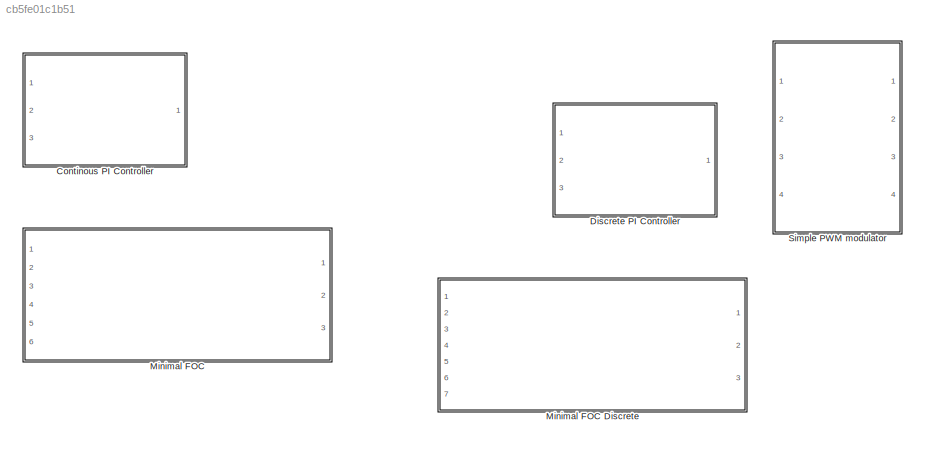
MODEL slx_cb5fe01c1b51
KIND library
CONFIG AbsTol = auto
CONFIG EnableMultiTasking = off
CONFIG FixedStep = auto
CONFIG MaxStep = auto
CONFIG MinStep = auto
CONFIG RelTol = 1e-3
CONFIG SampleTimeConstraint = Unconstrained
CONFIG Solver = VariableStepAuto
CONFIG SolverName = VariableStepAuto
CONFIG StartTime = 0.0
CONFIG StopTime = 10.0
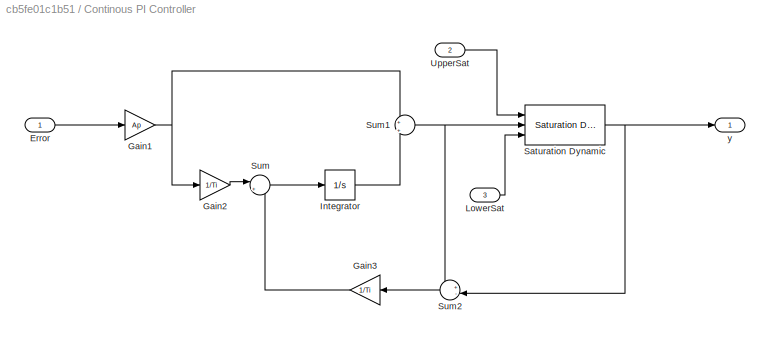
BLOCK [SubSystem] Continous PI Controller
  Ports = [3, 1]
  RequestExecContextInheritance = off
BLOCK [Inport] Continous PI Controller/Error
  IconDisplay = Port number
BLOCK [Gain] Continous PI Controller/Gain1
  Gain = Ap
  OutDataTypeStr = Inherit: Inherit via internal rule
  ParamDataTypeStr = Inherit: Inherit via internal rule
  SaturateOnIntegerOverflow = off
BLOCK [Gain] Continous PI Controller/Gain2
  Gain = 1/Ti
  OutDataTypeStr = Inherit: Inherit via internal rule
  ParamDataTypeStr = Inherit: Inherit via internal rule
  SaturateOnIntegerOverflow = off
BLOCK [Gain] Continous PI Controller/Gain3
  Gain = 1/Ti
  OutDataTypeStr = Inherit: Inherit via internal rule
  ParamDataTypeStr = Inherit: Inherit via internal rule
  SaturateOnIntegerOverflow = off
BLOCK [Integrator] Continous PI Controller/Integrator
  Ports = [1, 1]
BLOCK [Inport] Continous PI Controller/LowerSat
  IconDisplay = Port number
  Port = 3
BLOCK [Reference] Continous PI Controller/Saturation Dynamic  REF=simulink/Discontinuities/Saturation
Dynamic
  Ports = [3, 1]
  SourceBlock = simulink/Discontinuities/Saturation\nDynamic
  SourceProductBaseCode = SL
  SourceProductName = Simulink
  SourceType = Saturation Dynamic
BLOCK [Sum] Continous PI Controller/Sum
  IconShape = round
  InputSameDT = off
  Inputs = |+-
  OutDataTypeStr = Inherit: Inherit via internal rule
  Ports = [2, 1]
  SaturateOnIntegerOverflow = off
BLOCK [Sum] Continous PI Controller/Sum1
  IconShape = round
  InputSameDT = off
  Inputs = +|+
  OutDataTypeStr = Inherit: Inherit via internal rule
  Ports = [2, 1]
  SaturateOnIntegerOverflow = off
BLOCK [Sum] Continous PI Controller/Sum2
  IconShape = round
  InputSameDT = off
  Inputs = +-|
  OutDataTypeStr = Inherit: Inherit via internal rule
  Ports = [2, 1]
  SaturateOnIntegerOverflow = off
BLOCK [Inport] Continous PI Controller/UpperSat
  IconDisplay = Port number
  Port = 2
BLOCK [Outport] Continous PI Controller/y
  IconDisplay = Port number
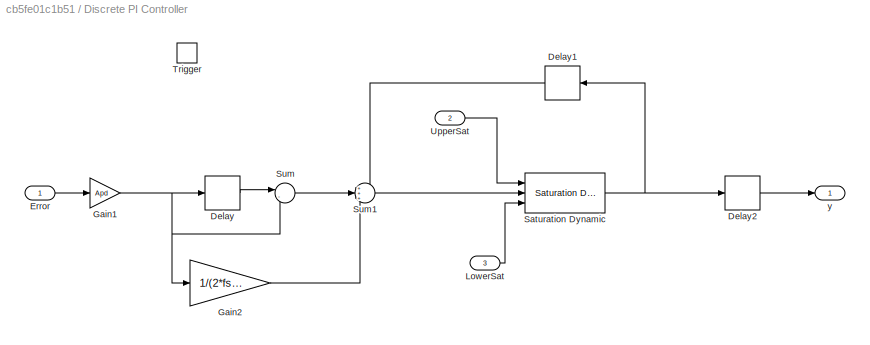
BLOCK [SubSystem] Discrete PI Controller
  AncestorBlock = controllers/Continous PI Controller
  Ports = [3, 1, 0, 1]
  RequestExecContextInheritance = off
BLOCK [Delay] Discrete PI Controller/Delay
  DelayLength = 1
  InputPortMap = u0
  Ports = [1, 1]
BLOCK [Delay] Discrete PI Controller/Delay1
  DelayLength = 1
  InputPortMap = u0
  Ports = [1, 1]
BLOCK [Delay] Discrete PI Controller/Delay2
  DelayLength = 1
  InputPortMap = u0
  Ports = [1, 1]
BLOCK [Inport] Discrete PI Controller/Error
  IconDisplay = Port number
BLOCK [Gain] Discrete PI Controller/Gain1
  Gain = Apd
  OutDataTypeStr = Inherit: Inherit via internal rule
  ParamDataTypeStr = Inherit: Inherit via internal rule
  SaturateOnIntegerOverflow = off
BLOCK [Gain] Discrete PI Controller/Gain2
  Gain = 1/(2*fs*Tid)
  OutDataTypeStr = Inherit: Inherit via internal rule
  ParamDataTypeStr = Inherit: Inherit via internal rule
  SaturateOnIntegerOverflow = off
BLOCK [Inport] Discrete PI Controller/LowerSat
  IconDisplay = Port number
  Port = 3
BLOCK [Reference] Discrete PI Controller/Saturation Dynamic  REF=simulink/Discontinuities/Saturation
Dynamic
  Ports = [3, 1]
  SourceBlock = simulink/Discontinuities/Saturation\nDynamic
  SourceProductBaseCode = SL
  SourceProductName = Simulink
  SourceType = Saturation Dynamic
BLOCK [Sum] Discrete PI Controller/Sum
  IconShape = round
  InputSameDT = off
  Inputs = |-+
  OutDataTypeStr = Inherit: Inherit via internal rule
  Ports = [2, 1]
  SaturateOnIntegerOverflow = off
BLOCK [Sum] Discrete PI Controller/Sum1
  IconShape = round
  InputSameDT = off
  Inputs = +++
  OutDataTypeStr = Inherit: Inherit via internal rule
  Ports = [3, 1]
  SaturateOnIntegerOverflow = off
BLOCK [TriggerPort] Discrete PI Controller/Trigger
  PortDimensions = 1
  Ports = []
  StatesWhenEnabling = held
  TriggerType = either
  VariantControl = Variant
BLOCK [Inport] Discrete PI Controller/UpperSat
  IconDisplay = Port number
  Port = 2
BLOCK [Outport] Discrete PI Controller/y
  IconDisplay = Port number
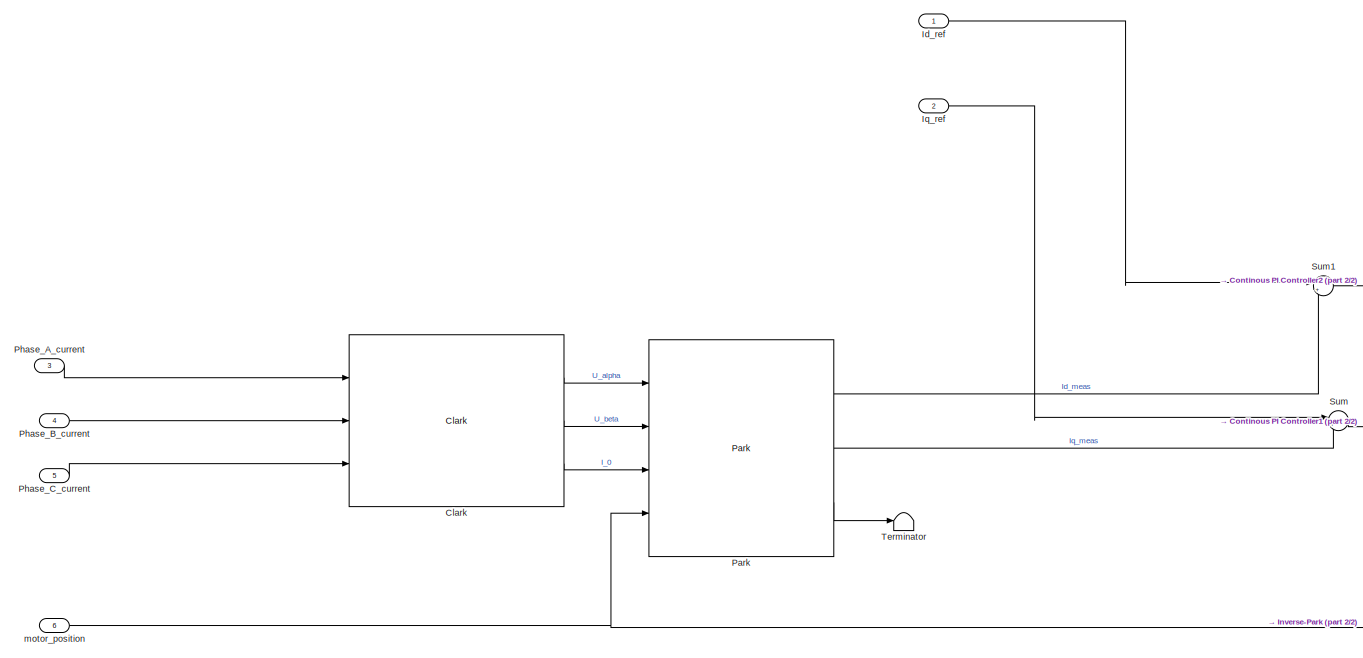
[diagram: Minimal FOC - part 1/2, left side, full height]
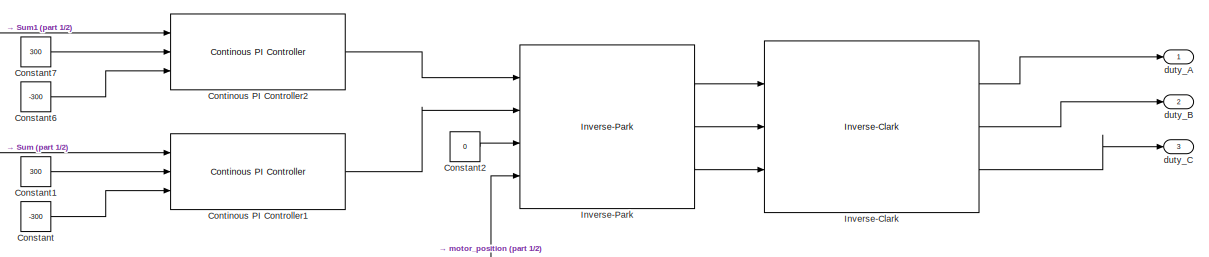
[diagram: Minimal FOC - part 2/2, middle right region]
BLOCK [SubSystem] Minimal FOC
  Ports = [6, 3]
  RequestExecContextInheritance = off
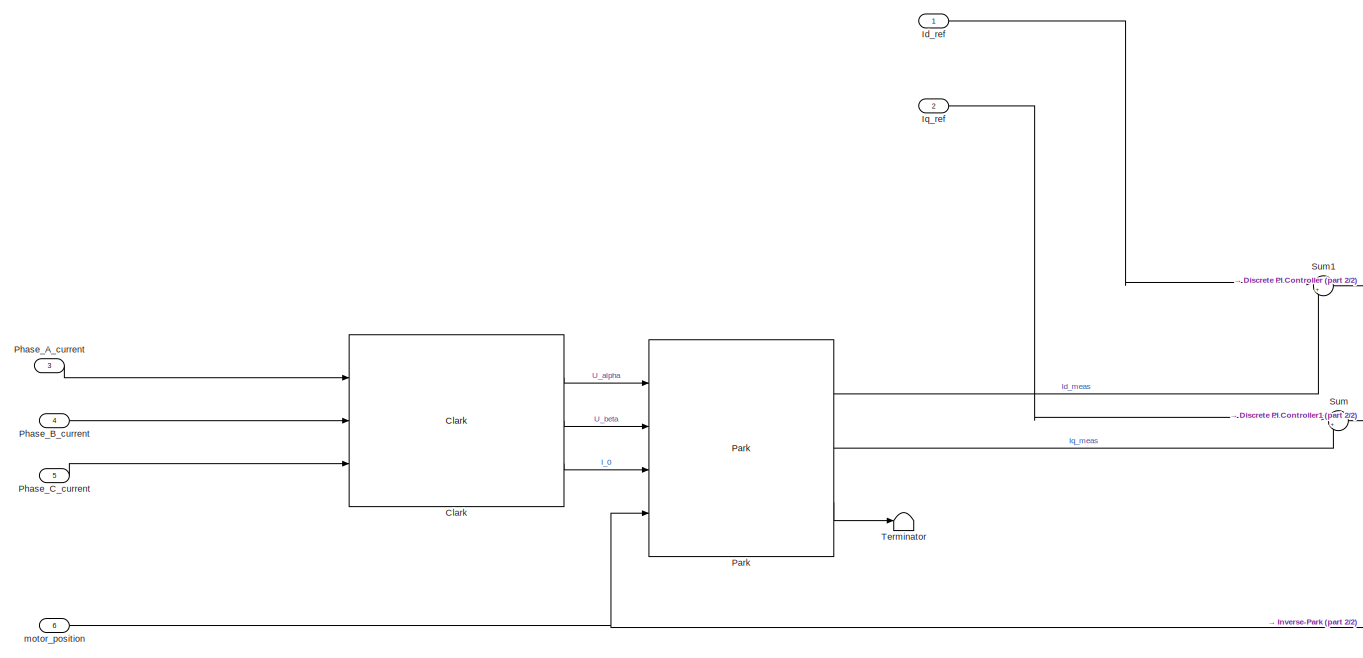
[diagram: Minimal FOC Discrete - part 1/2, left side, full height]
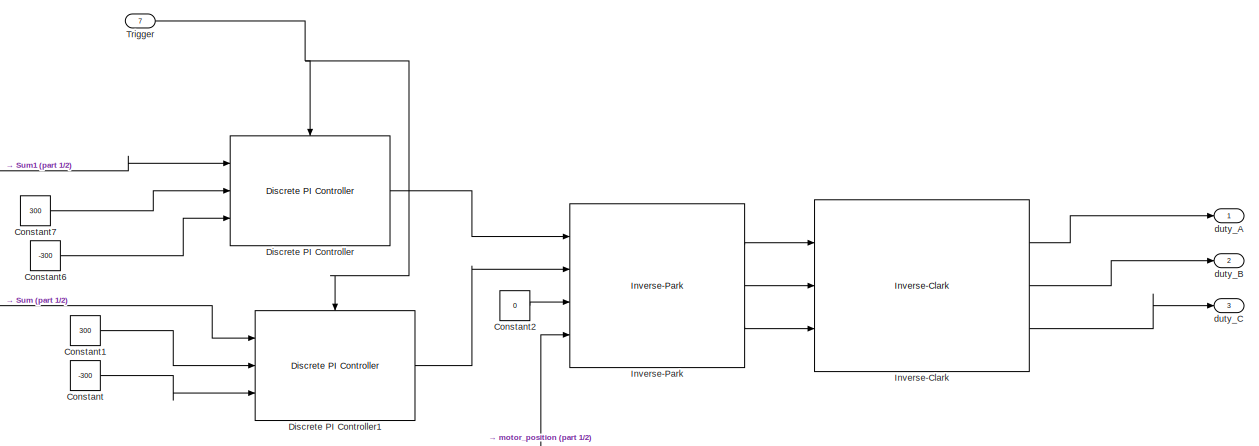
[diagram: Minimal FOC Discrete - part 2/2, middle right region]
BLOCK [SubSystem] Minimal FOC Discrete
  AncestorBlock = controllers/Minimal FOC
  Ports = [7, 3]
  RequestExecContextInheritance = off
BLOCK [Reference] Minimal FOC Discrete/Clark  REF=coordinate_transformations/Clark  (lib defined in slx_d357c885b4a9)
  Ports = [3, 3]
  SourceBlock = coordinate_transformations/Clark
  SourceType = SubSystem
BLOCK [Constant] Minimal FOC Discrete/Constant
  Value = -300
BLOCK [Constant] Minimal FOC Discrete/Constant1
  Value = 300
BLOCK [Constant] Minimal FOC Discrete/Constant2
  Value = 0
BLOCK [Constant] Minimal FOC Discrete/Constant6
  Value = -300
BLOCK [Constant] Minimal FOC Discrete/Constant7
  Value = 300
BLOCK [Reference] Minimal FOC Discrete/Discrete PI Controller  REF=$bdroot/Discrete PI Controller
  Ports = [3, 1, 0, 1]
  SourceBlock = $bdroot/Discrete PI Controller
  SourceType = Continous PI Controller
BLOCK [Reference] Minimal FOC Discrete/Discrete PI Controller1  REF=$bdroot/Discrete PI Controller
  Ports = [3, 1, 0, 1]
  SourceBlock = $bdroot/Discrete PI Controller
  SourceType = Continous PI Controller
BLOCK [Inport] Minimal FOC Discrete/Id_ref
  IconDisplay = Port number
BLOCK [Reference] Minimal FOC Discrete/Inverse-Clark  REF=coordinate_transformations/Inverse-Clark  (lib defined in slx_d357c885b4a9)
  Ports = [3, 3]
  SourceBlock = coordinate_transformations/Inverse-Clark
  SourceType = SubSystem
BLOCK [Reference] Minimal FOC Discrete/Inverse-Park  REF=coordinate_transformations/Inverse-Park  (lib defined in slx_d357c885b4a9)
  Ports = [4, 3]
  SourceBlock = coordinate_transformations/Inverse-Park
  SourceType = SubSystem
BLOCK [Inport] Minimal FOC Discrete/Iq_ref
  IconDisplay = Port number
  Port = 2
BLOCK [Reference] Minimal FOC Discrete/Park  REF=coordinate_transformations/Park  (lib defined in slx_d357c885b4a9)
  Ports = [4, 3]
  SourceBlock = coordinate_transformations/Park
  SourceType = SubSystem
BLOCK [Inport] Minimal FOC Discrete/Phase_A_current
  IconDisplay = Port number
  Port = 3
BLOCK [Inport] Minimal FOC Discrete/Phase_B_current
  IconDisplay = Port number
  Port = 4
BLOCK [Inport] Minimal FOC Discrete/Phase_C_current
  IconDisplay = Port number
  Port = 5
BLOCK [Sum] Minimal FOC Discrete/Sum
  IconShape = round
  InputSameDT = off
  Inputs = |+-
  OutDataTypeStr = Inherit: Inherit via internal rule
  Ports = [2, 1]
  SaturateOnIntegerOverflow = off
BLOCK [Sum] Minimal FOC Discrete/Sum1
  IconShape = round
  InputSameDT = off
  Inputs = |+-
  OutDataTypeStr = Inherit: Inherit via internal rule
  Ports = [2, 1]
  SaturateOnIntegerOverflow = off
BLOCK [Terminator] Minimal FOC Discrete/Terminator
BLOCK [Inport] Minimal FOC Discrete/Trigger
  IconDisplay = Port number
  Port = 7
BLOCK [Outport] Minimal FOC Discrete/duty_A
  IconDisplay = Port number
BLOCK [Outport] Minimal FOC Discrete/duty_B
  IconDisplay = Port number
  Port = 2
BLOCK [Outport] Minimal FOC Discrete/duty_C
  IconDisplay = Port number
  Port = 3
BLOCK [Inport] Minimal FOC Discrete/motor_position
  IconDisplay = Port number
  Port = 6
BLOCK [Reference] Minimal FOC/Clark  REF=coordinate_transformations/Clark  (lib defined in slx_d357c885b4a9)
  Ports = [3, 3]
  SourceBlock = coordinate_transformations/Clark
  SourceType = SubSystem
BLOCK [Constant] Minimal FOC/Constant
  Value = -300
BLOCK [Constant] Minimal FOC/Constant1
  Value = 300
BLOCK [Constant] Minimal FOC/Constant2
  Value = 0
BLOCK [Constant] Minimal FOC/Constant6
  Value = -300
BLOCK [Constant] Minimal FOC/Constant7
  Value = 300
BLOCK [Reference] Minimal FOC/Continous PI Controller1  REF=$bdroot/Continous PI Controller
  Ports = [3, 1]
  SourceBlock = $bdroot/Continous PI Controller
  SourceType = Continous PI Controller
BLOCK [Reference] Minimal FOC/Continous PI Controller2  REF=$bdroot/Continous PI Controller
  Ports = [3, 1]
  SourceBlock = $bdroot/Continous PI Controller
  SourceType = Continous PI Controller
BLOCK [Inport] Minimal FOC/Id_ref
  IconDisplay = Port number
BLOCK [Reference] Minimal FOC/Inverse-Clark  REF=coordinate_transformations/Inverse-Clark  (lib defined in slx_d357c885b4a9)
  Ports = [3, 3]
  SourceBlock = coordinate_transformations/Inverse-Clark
  SourceType = SubSystem
BLOCK [Reference] Minimal FOC/Inverse-Park  REF=coordinate_transformations/Inverse-Park  (lib defined in slx_d357c885b4a9)
  Ports = [4, 3]
  SourceBlock = coordinate_transformations/Inverse-Park
  SourceType = SubSystem
BLOCK [Inport] Minimal FOC/Iq_ref
  IconDisplay = Port number
  Port = 2
BLOCK [Reference] Minimal FOC/Park  REF=coordinate_transformations/Park  (lib defined in slx_d357c885b4a9)
  Ports = [4, 3]
  SourceBlock = coordinate_transformations/Park
  SourceType = SubSystem
BLOCK [Inport] Minimal FOC/Phase_A_current
  IconDisplay = Port number
  Port = 3
BLOCK [Inport] Minimal FOC/Phase_B_current
  IconDisplay = Port number
  Port = 4
BLOCK [Inport] Minimal FOC/Phase_C_current
  IconDisplay = Port number
  Port = 5
BLOCK [Sum] Minimal FOC/Sum
  IconShape = round
  InputSameDT = off
  Inputs = |+-
  OutDataTypeStr = Inherit: Inherit via internal rule
  Ports = [2, 1]
  SaturateOnIntegerOverflow = off
BLOCK [Sum] Minimal FOC/Sum1
  IconShape = round
  InputSameDT = off
  Inputs = |+-
  OutDataTypeStr = Inherit: Inherit via internal rule
  Ports = [2, 1]
  SaturateOnIntegerOverflow = off
BLOCK [Terminator] Minimal FOC/Terminator
BLOCK [Outport] Minimal FOC/duty_A
  IconDisplay = Port number
BLOCK [Outport] Minimal FOC/duty_B
  IconDisplay = Port number
  Port = 2
BLOCK [Outport] Minimal FOC/duty_C
  IconDisplay = Port number
  Port = 3
BLOCK [Inport] Minimal FOC/motor_position
  IconDisplay = Port number
  Port = 6
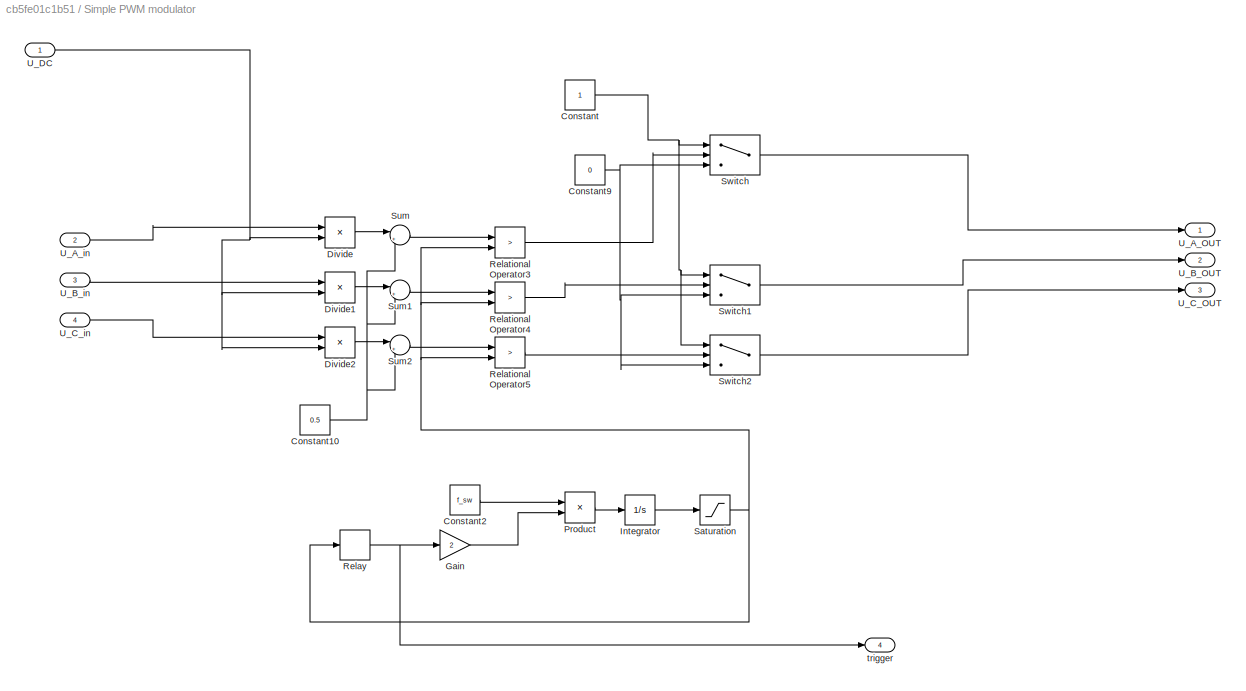
BLOCK [SubSystem] Simple PWM modulator
  Ports = [4, 4]
  RequestExecContextInheritance = off
BLOCK [Constant] Simple PWM modulator/Constant
BLOCK [Constant] Simple PWM modulator/Constant10
  Value = 0.5
BLOCK [Constant] Simple PWM modulator/Constant2
  Value = f_sw
BLOCK [Constant] Simple PWM modulator/Constant9
  Value = 0
BLOCK [Product] Simple PWM modulator/Divide
  InputSameDT = off
  Inputs = */
  OutDataTypeStr = Inherit: Inherit via internal rule
  Ports = [2, 1]
  RndMeth = Floor
  SaturateOnIntegerOverflow = off
BLOCK [Product] Simple PWM modulator/Divide1
  InputSameDT = off
  Inputs = */
  OutDataTypeStr = Inherit: Inherit via internal rule
  Ports = [2, 1]
  RndMeth = Floor
  SaturateOnIntegerOverflow = off
BLOCK [Product] Simple PWM modulator/Divide2
  InputSameDT = off
  Inputs = */
  OutDataTypeStr = Inherit: Inherit via internal rule
  Ports = [2, 1]
  RndMeth = Floor
  SaturateOnIntegerOverflow = off
BLOCK [Gain] Simple PWM modulator/Gain
  Gain = 2
  OutDataTypeStr = Inherit: Inherit via internal rule
  ParamDataTypeStr = Inherit: Inherit via internal rule
  SaturateOnIntegerOverflow = off
BLOCK [Integrator] Simple PWM modulator/Integrator
  Ports = [1, 1]
BLOCK [Product] Simple PWM modulator/Product
  InputSameDT = off
  OutDataTypeStr = Inherit: Inherit via internal rule
  Ports = [2, 1]
  RndMeth = Floor
  SaturateOnIntegerOverflow = off
BLOCK [RelationalOperator] Simple PWM modulator/Relational Operator3
  InputSameDT = off
  Operator = >
  OutDataTypeStr = boolean
  Ports = [2, 1]
  RndMeth = Simplest
BLOCK [RelationalOperator] Simple PWM modulator/Relational Operator4
  InputSameDT = off
  Operator = >
  OutDataTypeStr = boolean
  Ports = [2, 1]
  RndMeth = Simplest
BLOCK [RelationalOperator] Simple PWM modulator/Relational Operator5
  InputSameDT = off
  Operator = >
  OutDataTypeStr = boolean
  Ports = [2, 1]
  RndMeth = Simplest
BLOCK [Relay] Simple PWM modulator/Relay
  OffOutputValue = 1
  OffSwitchValue = 0
  OnOutputValue = -1
  OnSwitchValue = 1
BLOCK [Saturate] Simple PWM modulator/Saturation
  InputPortMap = u0
  LowerLimit = 0
  Ports = [1, 1]
  UpperLimit = 1
BLOCK [Sum] Simple PWM modulator/Sum
  IconShape = round
  InputSameDT = off
  Inputs = |++
  OutDataTypeStr = Inherit: Inherit via internal rule
  Ports = [2, 1]
  SaturateOnIntegerOverflow = off
BLOCK [Sum] Simple PWM modulator/Sum1
  IconShape = round
  InputSameDT = off
  Inputs = |++
  OutDataTypeStr = Inherit: Inherit via internal rule
  Ports = [2, 1]
  SaturateOnIntegerOverflow = off
BLOCK [Sum] Simple PWM modulator/Sum2
  IconShape = round
  InputSameDT = off
  Inputs = |++
  OutDataTypeStr = Inherit: Inherit via internal rule
  Ports = [2, 1]
  SaturateOnIntegerOverflow = off
BLOCK [Switch] Simple PWM modulator/Switch
  InputSameDT = off
  SaturateOnIntegerOverflow = off
  Threshold = 1
BLOCK [Switch] Simple PWM modulator/Switch1
  InputSameDT = off
  SaturateOnIntegerOverflow = off
  Threshold = 1
BLOCK [Switch] Simple PWM modulator/Switch2
  InputSameDT = off
  SaturateOnIntegerOverflow = off
  Threshold = 1
BLOCK [Outport] Simple PWM modulator/U_A_OUT
  IconDisplay = Port number
BLOCK [Inport] Simple PWM modulator/U_A_in
  IconDisplay = Port number
  Port = 2
BLOCK [Outport] Simple PWM modulator/U_B_OUT
  IconDisplay = Port number
  Port = 2
BLOCK [Inport] Simple PWM modulator/U_B_in
  IconDisplay = Port number
  Port = 3
BLOCK [Outport] Simple PWM modulator/U_C_OUT
  IconDisplay = Port number
  Port = 3
BLOCK [Inport] Simple PWM modulator/U_C_in
  IconDisplay = Port number
  Port = 4
BLOCK [Inport] Simple PWM modulator/U_DC
  IconDisplay = Port number
BLOCK [Outport] Simple PWM modulator/trigger
  IconDisplay = Port number
  Port = 4
LINE Continous PI Controller/Error:1 -> Continous PI Controller/Gain1:1
NET Continous PI Controller/Gain1:1 -> Continous PI Controller/Gain2:1, Continous PI Controller/Sum1:1
LINE Continous PI Controller/Gain2:1 -> Continous PI Controller/Sum:1
LINE Continous PI Controller/Gain3:1 -> Continous PI Controller/Sum:2
LINE Continous PI Controller/Integrator:1 -> Continous PI Controller/Sum1:2
LINE Continous PI Controller/LowerSat:1 -> Continous PI Controller/Saturation Dynamic:3
NET Continous PI Controller/Saturation Dynamic:1 -> Continous PI Controller/Sum2:2, Continous PI Controller/y:1
NET Continous PI Controller/Sum1:1 -> Continous PI Controller/Saturation Dynamic:2, Continous PI Controller/Sum2:1
LINE Continous PI Controller/Sum2:1 -> Continous PI Controller/Gain3:1
LINE Continous PI Controller/Sum:1 -> Continous PI Controller/Integrator:1
LINE Continous PI Controller/UpperSat:1 -> Continous PI Controller/Saturation Dynamic:1
LINE Minimal FOC/Clark:1 -> Minimal FOC/Park:1
LINE Minimal FOC/Clark:2 -> Minimal FOC/Park:2
LINE Minimal FOC/Clark:3 -> Minimal FOC/Park:3
LINE Minimal FOC/Constant1:1 -> Minimal FOC/Continous PI Controller1:2
LINE Minimal FOC/Constant2:1 -> Minimal FOC/Inverse-Park:3
LINE Minimal FOC/Constant6:1 -> Minimal FOC/Continous PI Controller2:3
LINE Minimal FOC/Constant7:1 -> Minimal FOC/Continous PI Controller2:2
LINE Minimal FOC/Constant:1 -> Minimal FOC/Continous PI Controller1:3
LINE Minimal FOC/Continous PI Controller1:1 -> Minimal FOC/Inverse-Park:2
LINE Minimal FOC/Continous PI Controller2:1 -> Minimal FOC/Inverse-Park:1
LINE Minimal FOC/Id_ref:1 -> Minimal FOC/Sum1:1
LINE Minimal FOC/Inverse-Clark:1 -> Minimal FOC/duty_A:1
LINE Minimal FOC/Inverse-Clark:2 -> Minimal FOC/duty_B:1
LINE Minimal FOC/Inverse-Clark:3 -> Minimal FOC/duty_C:1
LINE Minimal FOC/Inverse-Park:1 -> Minimal FOC/Inverse-Clark:1
LINE Minimal FOC/Inverse-Park:2 -> Minimal FOC/Inverse-Clark:2
LINE Minimal FOC/Inverse-Park:3 -> Minimal FOC/Inverse-Clark:3
LINE Minimal FOC/Iq_ref:1 -> Minimal FOC/Sum:1
LINE Minimal FOC/Park:1 -> Minimal FOC/Sum1:2
LINE Minimal FOC/Park:2 -> Minimal FOC/Sum:2
LINE Minimal FOC/Park:3 -> Minimal FOC/Terminator:1
LINE Minimal FOC/Phase_A_current:1 -> Minimal FOC/Clark:1
LINE Minimal FOC/Phase_B_current:1 -> Minimal FOC/Clark:2
LINE Minimal FOC/Phase_C_current:1 -> Minimal FOC/Clark:3
LINE Minimal FOC/Sum1:1 -> Minimal FOC/Continous PI Controller2:1
LINE Minimal FOC/Sum:1 -> Minimal FOC/Continous PI Controller1:1
NET Minimal FOC/motor_position:1 -> Minimal FOC/Inverse-Park:4, Minimal FOC/Park:4
NET Simple PWM modulator/Constant10:1 -> Simple PWM modulator/Sum1:2, Simple PWM modulator/Sum2:2, Simple PWM modulator/Sum:2
LINE Simple PWM modulator/Constant2:1 -> Simple PWM modulator/Product:1
NET Simple PWM modulator/Constant9:1 -> Simple PWM modulator/Switch1:3, Simple PWM modulator/Switch2:3, Simple PWM modulator/Switch:3
NET Simple PWM modulator/Constant:1 -> Simple PWM modulator/Switch1:1, Simple PWM modulator/Switch2:1, Simple PWM modulator/Switch:1
LINE Simple PWM modulator/Divide1:1 -> Simple PWM modulator/Sum1:1
LINE Simple PWM modulator/Divide2:1 -> Simple PWM modulator/Sum2:1
LINE Simple PWM modulator/Divide:1 -> Simple PWM modulator/Sum:1
LINE Simple PWM modulator/Gain:1 -> Simple PWM modulator/Product:2
LINE Simple PWM modulator/Integrator:1 -> Simple PWM modulator/Saturation:1
LINE Simple PWM modulator/Product:1 -> Simple PWM modulator/Integrator:1
LINE Simple PWM modulator/Relational Operator3:1 -> Simple PWM modulator/Switch:2
LINE Simple PWM modulator/Relational Operator4:1 -> Simple PWM modulator/Switch1:2
LINE Simple PWM modulator/Relational Operator5:1 -> Simple PWM modulator/Switch2:2
NET Simple PWM modulator/Relay:1 -> Simple PWM modulator/Gain:1, Simple PWM modulator/trigger:1
NET Simple PWM modulator/Saturation:1 -> Simple PWM modulator/Relational Operator3:2, Simple PWM modulator/Relational Operator4:2, Simple PWM modulator/Relational Operator5:2, Simple PWM modulator/Relay:1
LINE Simple PWM modulator/Sum1:1 -> Simple PWM modulator/Relational Operator4:1
LINE Simple PWM modulator/Sum2:1 -> Simple PWM modulator/Relational Operator5:1
LINE Simple PWM modulator/Sum:1 -> Simple PWM modulator/Relational Operator3:1
LINE Simple PWM modulator/Switch1:1 -> Simple PWM modulator/U_B_OUT:1
LINE Simple PWM modulator/Switch2:1 -> Simple PWM modulator/U_C_OUT:1
LINE Simple PWM modulator/Switch:1 -> Simple PWM modulator/U_A_OUT:1
LINE Simple PWM modulator/U_A_in:1 -> Simple PWM modulator/Divide:1
LINE Simple PWM modulator/U_B_in:1 -> Simple PWM modulator/Divide1:1
LINE Simple PWM modulator/U_C_in:1 -> Simple PWM modulator/Divide2:1
NET Simple PWM modulator/U_DC:1 -> Simple PWM modulator/Divide1:2, Simple PWM modulator/Divide2:2, Simple PWM modulator/Divide:2
note: NET lines group one-source signal fan-out (src -> all destinations, sorted); 1:1 wires keep LINE
